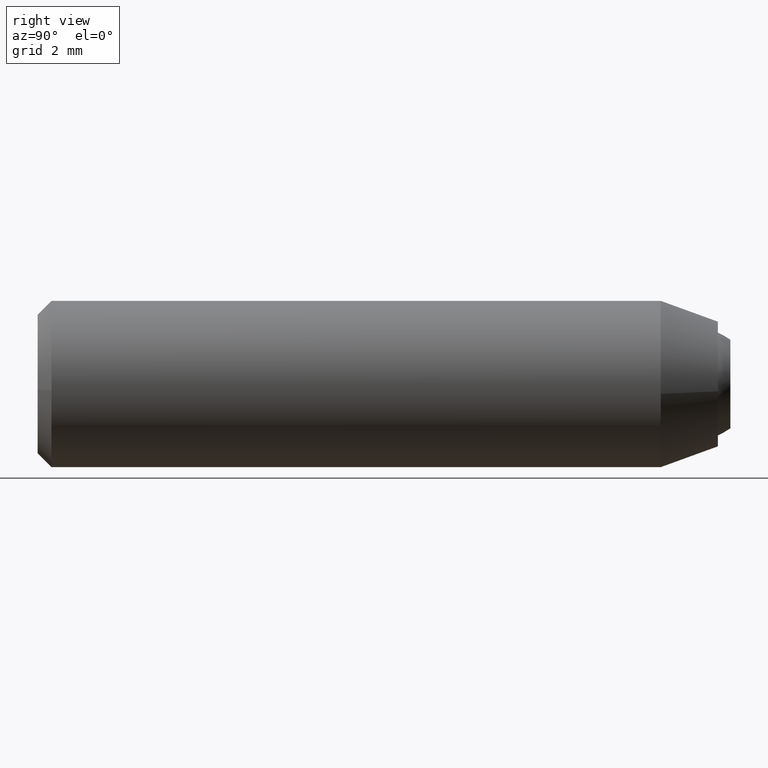
[diagram: clean part render]
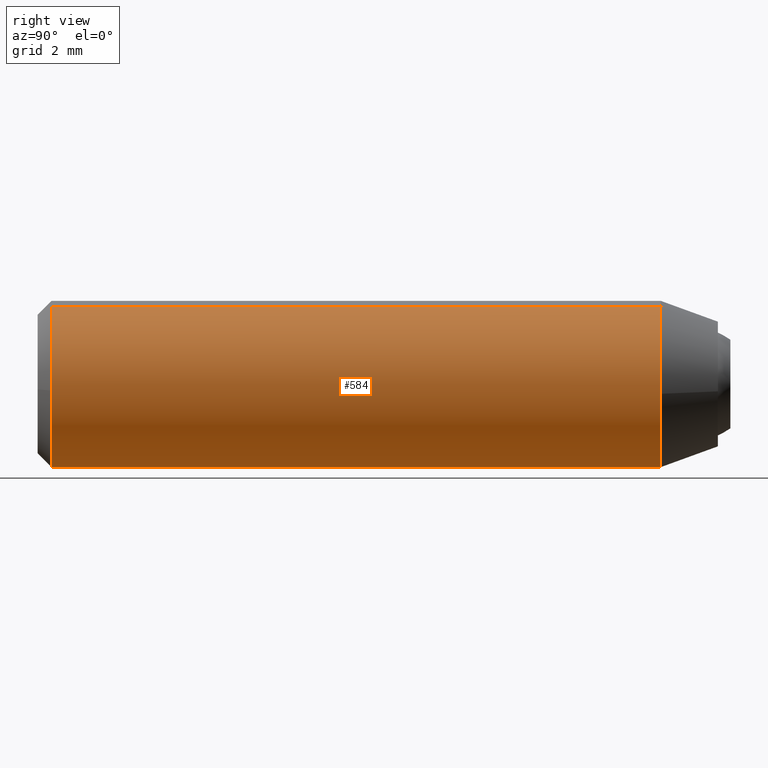
[diagram: same view with one face highlighted and labeled with its STEP entity id]
A machine part, right view. The second image highlights one B-rep face of the part: STEP entity #584.
In plain terms, the highlighted face is a freeform B-spline surface patch.
Its self-contained STEP definition (entity closure, byte-faithful):
#248=CARTESIAN_POINT('',(0.0,-24.050000000000001,-3.0));
#249=VERTEX_POINT('',#248);
#250=CARTESIAN_POINT('',(2.990752001202853,-24.049999999991300,-0.235377287250343));
#251=VERTEX_POINT('',#250);
#252=CARTESIAN_POINT('',(0.0,-24.050000000000001,-3.0));
#253=CARTESIAN_POINT('',(2.773171474851615,-24.050000000000004,-3.000000000000000));
#254=CARTESIAN_POINT('',(2.990752001202853,-24.049999999991304,-0.235377287250343));
#262=(BOUNDED_CURVE()B_SPLINE_CURVE(2,(#252,#253,#254),.UNSPECIFIED.,.F.,.U.)B_SPLINE_CURVE_WITH_KNOTS((3,3),(0.0,0.236331300625187),.UNSPECIFIED.)CURVE()GEOMETRIC_REPRESENTATION_ITEM()RATIONAL_B_SPLINE_CURVE((1.0,0.723120658614078,0.969723356155996))REPRESENTATION_ITEM(''));
#263=EDGE_CURVE('',#249,#251,#262,.T.);
#311=CARTESIAN_POINT('',(-2.994404501233572,-24.049999999999990,0.183143886027102));
#312=VERTEX_POINT('',#311);
#326=CARTESIAN_POINT('',(-2.994404501233571,-24.049999999999994,0.183143886027102));
#327=CARTESIAN_POINT('',(-3.000000000000000,-24.049999999999997,0.091657421178081));
#328=CARTESIAN_POINT('',(-3.0,-24.050000000000001,-1.683834E-016));
#329=CARTESIAN_POINT('',(-3.0,-24.050000000000004,-3.0));
#330=CARTESIAN_POINT('',(0.0,-24.050000000000001,-3.0));
#338=(BOUNDED_CURVE()B_SPLINE_CURVE(2,(#326,#327,#328,#329,#330),.UNSPECIFIED.,.F.,.U.)B_SPLINE_CURVE_WITH_KNOTS((3,2,3),(0.739333062078418,0.750000000000000,1.0),.UNSPECIFIED.)CURVE()GEOMETRIC_REPRESENTATION_ITEM()RATIONAL_B_SPLINE_CURVE((0.976072255641811,0.987502904869058,1.0,0.707106781186548,1.0))REPRESENTATION_ITEM(''));
#339=EDGE_CURVE('',#312,#249,#338,.T.);
#362=CARTESIAN_POINT('',(1.054851423446795,-24.049999999999990,2.808431675231772));
#363=VERTEX_POINT('',#362);
#364=CARTESIAN_POINT('',(2.990752001202853,-24.049999999991300,-0.235377287250343));
#365=CARTESIAN_POINT('',(3.000000000000000,-24.049999999999997,-0.117870321089440));
#366=CARTESIAN_POINT('',(3.0,-24.050000000000001,-1.683834E-016));
#367=CARTESIAN_POINT('',(2.999999999999999,-24.050000000000001,2.077830762670937));
#368=CARTESIAN_POINT('',(1.054851423446795,-24.049999999999990,2.808431675231772));
#376=(BOUNDED_CURVE()B_SPLINE_CURVE(2,(#364,#365,#366,#367,#368),.UNSPECIFIED.,.F.,.U.)B_SPLINE_CURVE_WITH_KNOTS((3,2,3),(0.236331300625187,0.250000000000000,0.440284311486916),.UNSPECIFIED.)CURVE()GEOMETRIC_REPRESENTATION_ITEM()RATIONAL_B_SPLINE_CURVE((0.969723356155996,0.983986122572470,1.0,0.777068062075583,0.893499726682298))REPRESENTATION_ITEM(''));
#377=EDGE_CURVE('',#251,#363,#376,.T.);
#460=CARTESIAN_POINT('',(1.054853923177952,-2.060608000000000,2.808430736328756));
#461=VERTEX_POINT('',#460);
#477=CARTESIAN_POINT('',(-2.994404181319607,-2.060606530119079,0.183144734762803));
#478=VERTEX_POINT('',#477);
#492=CARTESIAN_POINT('',(-2.994404181319607,-2.060606530119079,0.183144734762803));
#493=CARTESIAN_POINT('',(-2.994404501233572,-24.049999999999990,0.183143886027102));
#494=QUASI_UNIFORM_CURVE('',1,(#492,#493),.UNSPECIFIED.,.F.,.U.);
#495=EDGE_CURVE('',#478,#312,#494,.T.);
#500=CARTESIAN_POINT('',(1.054853923177952,-2.060608000000000,2.808430736328756));
#501=CARTESIAN_POINT('',(1.054851423446795,-24.049999999999990,2.808431675231772));
#502=QUASI_UNIFORM_CURVE('',1,(#500,#501),.UNSPECIFIED.,.F.,.U.);
#503=EDGE_CURVE('',#461,#363,#502,.T.);
#508=CARTESIAN_POINT('',(-2.994404395265600,-1.510873199999999,0.183145618604571));
#509=CARTESIAN_POINT('',(-3.177550013870171,-1.510873199999999,-2.811258776661029));
#510=CARTESIAN_POINT('',(-0.183145618604571,-1.510873199999999,-2.994404395265600));
#511=CARTESIAN_POINT('',(2.811258776661029,-1.510873199999999,-3.177550013870172));
#512=CARTESIAN_POINT('',(2.994404395265600,-1.510873199999999,-0.183145618604571));
#513=CARTESIAN_POINT('',(3.129711668608025,-1.510873199999999,2.029108745409195));
#514=CARTESIAN_POINT('',(1.054853923174716,-1.510873199999999,2.808430736329971));
#515=CARTESIAN_POINT('',(-2.994404395265600,-24.613478170000000,0.183145618604571));
#516=CARTESIAN_POINT('',(-3.177550013870171,-24.613478170000004,-2.811258776661029));
#517=CARTESIAN_POINT('',(-0.183145618604571,-24.613478170000000,-2.994404395265600));
#518=CARTESIAN_POINT('',(2.811258776661029,-24.613478170000004,-3.177550013870172));
#519=CARTESIAN_POINT('',(2.994404395265600,-24.613478170000000,-0.183145618604571));
#520=CARTESIAN_POINT('',(3.129711668608025,-24.613478170000008,2.029108745409195));
#521=CARTESIAN_POINT('',(1.054853923174716,-24.613478170000004,2.808430736329971));
#529=(BOUNDED_SURFACE()B_SPLINE_SURFACE(2,1,((#508,#515),(#509,#516),(#510,#517),(#511,#518),(#512,#519),(#513,#520),(#514,#521)),.UNSPECIFIED.,.F.,.F.,.U.)B_SPLINE_SURFACE_WITH_KNOTS((3,2,2,3),(2,2),(0.0,4.970562748477139,9.941125496954278,13.917575695735991),(0.0,23.102604970000009),.UNSPECIFIED.)GEOMETRIC_REPRESENTATION_ITEM()RATIONAL_B_SPLINE_SURFACE(((1.0,1.0),(0.707106781186548,0.707106781186548),(1.0,1.0),(0.707106781186548,0.707106781186548),(1.0,1.0),(0.765685424949238,0.765685424949238),(0.906274169979695,0.906274169979695)))REPRESENTATION_ITEM('')SURFACE());
#530=CARTESIAN_POINT('',(2.979028579089626,-2.060608000005122,-0.354102703997646));
#531=VERTEX_POINT('',#530);
#532=CARTESIAN_POINT('',(2.979028579089626,-2.060608000005121,-0.354102703997646));
#533=CARTESIAN_POINT('',(3.000000000000000,-2.060608000000000,-0.177672358983168));
#534=CARTESIAN_POINT('',(3.0,-2.060608000000000,-1.683834E-016));
#535=CARTESIAN_POINT('',(3.000000000000000,-2.060607999999999,2.077828787078143));
#536=CARTESIAN_POINT('',(1.054853923177952,-2.060608000000001,2.808430736328757));
#544=(BOUNDED_CURVE()B_SPLINE_CURVE(2,(#532,#533,#534,#535,#536),.UNSPECIFIED.,.F.,.U.)B_SPLINE_CURVE_WITH_KNOTS((3,2,3),(0.229562473512564,0.250000000000000,0.440284170898545),.UNSPECIFIED.)CURVE()GEOMETRIC_REPRESENTATION_ITEM()RATIONAL_B_SPLINE_CURVE((0.956026754181848,0.976055948330038,1.0,0.777068226785104,0.893499554635320))REPRESENTATION_ITEM(''));
#545=EDGE_CURVE('',#531,#461,#544,.T.);
#546=ORIENTED_EDGE('',*,*,#545,.T.);
#547=ORIENTED_EDGE('',*,*,#503,.T.);
#548=ORIENTED_EDGE('',*,*,#377,.F.);
#549=ORIENTED_EDGE('',*,*,#263,.F.);
#550=ORIENTED_EDGE('',*,*,#339,.F.);
#551=ORIENTED_EDGE('',*,*,#495,.F.);
#552=CARTESIAN_POINT('',(0.0,-2.060608000000000,-3.0));
#553=VERTEX_POINT('',#552);
#554=CARTESIAN_POINT('',(-2.994404181319607,-2.060606530119080,0.183144734762803));
#555=CARTESIAN_POINT('',(-2.999999736831882,-2.060606551242034,0.091657838828033));
#556=CARTESIAN_POINT('',(-2.999999740910735,-2.060606573696389,-0.000000015846503));
#557=CARTESIAN_POINT('',(-2.999999874413295,-2.060607308636849,-3.000000007681176));
#558=CARTESIAN_POINT('',(0.0,-2.060608000000000,-3.0));
#566=(BOUNDED_CURVE()B_SPLINE_CURVE(2,(#554,#555,#556,#557,#558),.UNSPECIFIED.,.F.,.U.)B_SPLINE_CURVE_WITH_KNOTS((3,2,3),(0.739333012230629,0.750000000000000,1.0),.UNSPECIFIED.)CURVE()GEOMETRIC_REPRESENTATION_ITEM()RATIONAL_B_SPLINE_CURVE((0.976072148808440,0.987502846468741,1.0,0.707106781186548,1.0))REPRESENTATION_ITEM(''));
#567=EDGE_CURVE('',#478,#553,#566,.T.);
#568=ORIENTED_EDGE('',*,*,#567,.T.);
#569=CARTESIAN_POINT('',(0.0,-2.060608000000000,-3.0));
#570=CARTESIAN_POINT('',(2.664523577805195,-2.060607999999999,-3.000000000000000));
#571=CARTESIAN_POINT('',(2.979028579089626,-2.060608000005122,-0.354102703997646));
#579=(BOUNDED_CURVE()B_SPLINE_CURVE(2,(#569,#570,#571),.UNSPECIFIED.,.F.,.U.)B_SPLINE_CURVE_WITH_KNOTS((3,3),(0.0,0.229562473512564),.UNSPECIFIED.)CURVE()GEOMETRIC_REPRESENTATION_ITEM()RATIONAL_B_SPLINE_CURVE((1.0,0.731050832856509,0.956026754181848))REPRESENTATION_ITEM(''));
#580=EDGE_CURVE('',#553,#531,#579,.T.);
#581=ORIENTED_EDGE('',*,*,#580,.T.);
#582=EDGE_LOOP('',(#546,#547,#548,#549,#550,#551,#568,#581));
#583=FACE_OUTER_BOUND('',#582,.T.);
#584=ADVANCED_FACE('',(#583),#529,.T.);